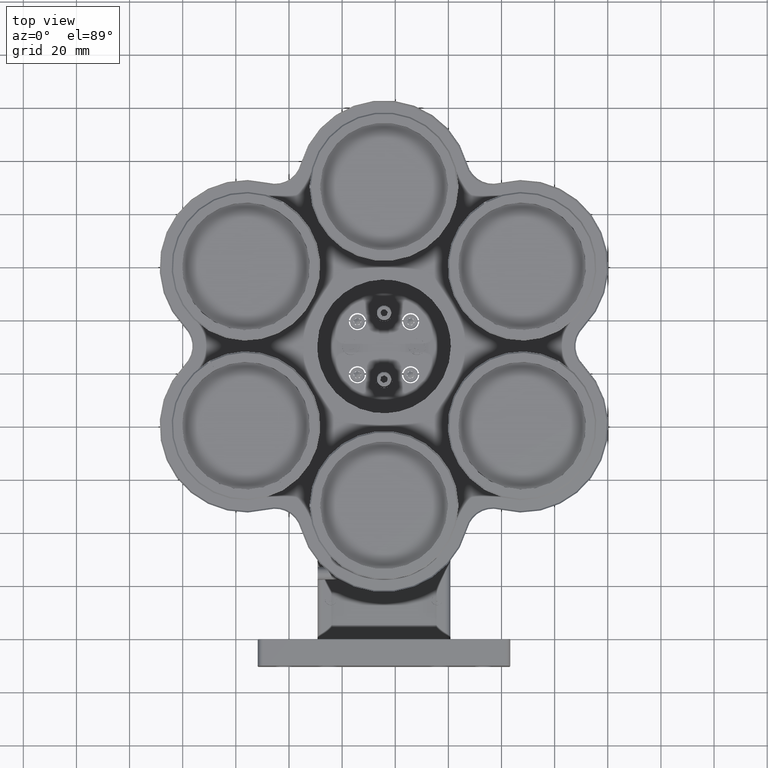
[diagram: clean part render]
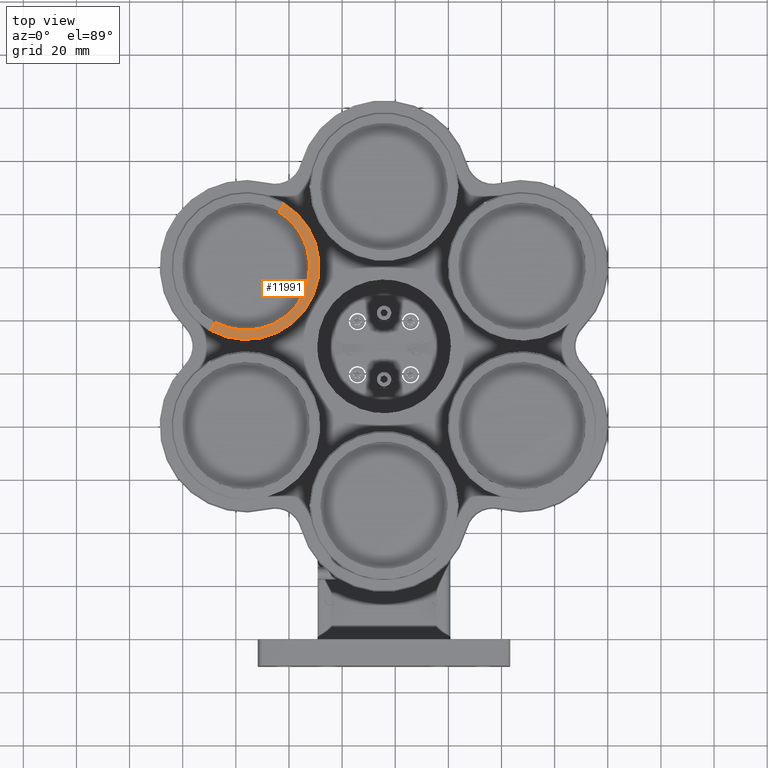
[diagram: same view with one face highlighted and labeled with its STEP entity id]
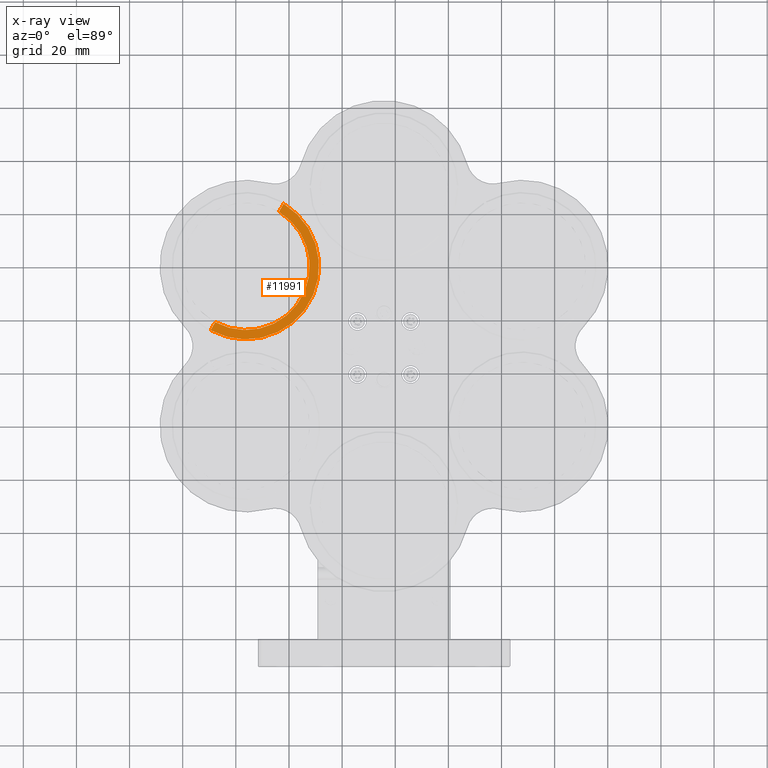
[diagram: x-ray of the same camera — body ghosted, the highlighted face saturated]
A machine part, top view. The second image highlights one B-rep face of the part: STEP entity #11991.
The next image is the same camera in x-ray: the body ghosted, the highlighted face saturated — about 0% of this face is hidden behind the body in this view.
In plain terms, the highlighted planar face has unit normal (-0, 0, 1).
Its self-contained STEP definition (entity closure, byte-faithful):
#463 = CARTESIAN_POINT ( 'NONE',  ( -56.19334064091309244, 99.63146635550532437, 180.7499999999716351 ) ) ;
#670 = DIRECTION ( 'NONE',  ( 2.478176394252629952E-16, 4.292327424963281231E-16, 1.000000000000000000 ) ) ;
#1407 = EDGE_CURVE ( 'NONE', #10917, #11161, #9255, .T. ) ;
#1565 = DIRECTION ( 'NONE',  ( -1.000000000000000000, 0.000000000000000000, 0.000000000000000000 ) ) ;
#1773 = CARTESIAN_POINT ( 'NONE',  ( -56.19334064091309244, 99.63146635550532437, 180.7499999999716351 ) ) ;
#2053 = FACE_OUTER_BOUND ( 'NONE', #7967, .T. ) ;
#2133 = DIRECTION ( 'NONE',  ( -0.000000000000000000, 0.000000000000000000, 1.000000000000000000 ) ) ;
#2456 = VERTEX_POINT ( 'NONE', #13233 ) ;
#2660 = VECTOR ( 'NONE', #10137, 1000.000000000000114 ) ;
#2780 = CARTESIAN_POINT ( 'NONE',  ( -43.76293238831880217, 120.1615650078215367, 180.7499999999716351 ) ) ;
#5369 = DIRECTION ( 'NONE',  ( 1.000000000000000000, 0.000000000000000000, 0.000000000000000000 ) ) ;
#5774 = CARTESIAN_POINT ( 'NONE',  ( -42.01260085415307799, 123.1932281550864872, 180.7499999999716351 ) ) ;
#6556 = VECTOR ( 'NONE', #13890, 1000.000000000000114 ) ;
#6729 = LINE ( 'NONE', #6954, #2660 ) ;
#6954 = CARTESIAN_POINT ( 'NONE',  ( -67.75772348972294878, 78.60136770318909782, 180.7499999999716351 ) ) ;
#7157 = DIRECTION ( 'NONE',  ( 0.000000000000000000, 0.000000000000000000, -1.000000000000000000 ) ) ;
#7226 = VERTEX_POINT ( 'NONE', #10492 ) ;
#7411 = EDGE_CURVE ( 'NONE', #11161, #7226, #11027, .T. ) ;
#7967 = EDGE_LOOP ( 'NONE', ( #14541, #8809, #13413, #13507 ) ) ;
#8144 = CARTESIAN_POINT ( 'NONE',  ( -42.01260085415307799, 123.1932281550864872, 180.7499999999716351 ) ) ;
#8809 = ORIENTED_EDGE ( 'NONE', *, *, #10930, .T. ) ;
#9255 = LINE ( 'NONE', #8144, #6556 ) ;
#9800 = CARTESIAN_POINT ( 'NONE',  ( -56.19334064091309244, 99.63146635550532437, 180.7499999999716351 ) ) ;
#10137 = DIRECTION ( 'NONE',  ( -0.5000000000000128786, -0.8660254037844312691, 0.000000000000000000 ) ) ;
#10492 = CARTESIAN_POINT ( 'NONE',  ( -67.75772348972294878, 78.60136770318909782, 180.7499999999716351 ) ) ;
#10798 = AXIS2_PLACEMENT_3D ( 'NONE', #463, #7157, #1565 ) ;
#10917 = VERTEX_POINT ( 'NONE', #5774 ) ;
#10930 = EDGE_CURVE ( 'NONE', #7226, #2456, #6729, .T. ) ;
#11027 = CIRCLE ( 'NONE', #10798, 24.00000000000000711 ) ;
#11161 = VERTEX_POINT ( 'NONE', #2780 ) ;
#11872 = AXIS2_PLACEMENT_3D ( 'NONE', #9800, #2133, #5369 ) ;
#11875 = CIRCLE ( 'NONE', #13749, 27.50000000000002487 ) ;
#11880 = DIRECTION ( 'NONE',  ( 0.000000000000000000, 1.000000000000000000, 0.000000000000000000 ) ) ;
#11991 = ADVANCED_FACE ( 'NONE', ( #2053 ), #12225, .T. ) ;
#12225 = PLANE ( 'NONE',  #11872 ) ;
#12804 = EDGE_CURVE ( 'NONE', #2456, #10917, #11875, .T. ) ;
#13233 = CARTESIAN_POINT ( 'NONE',  ( -69.50805502388868717, 75.56970455592416158, 180.7499999999716351 ) ) ;
#13413 = ORIENTED_EDGE ( 'NONE', *, *, #12804, .T. ) ;
#13507 = ORIENTED_EDGE ( 'NONE', *, *, #1407, .T. ) ;
#13749 = AXIS2_PLACEMENT_3D ( 'NONE', #1773, #670, #11880 ) ;
#13890 = DIRECTION ( 'NONE',  ( -0.5000000000000079936, -0.8660254037844339337, 0.000000000000000000 ) ) ;
#14541 = ORIENTED_EDGE ( 'NONE', *, *, #7411, .T. ) ;